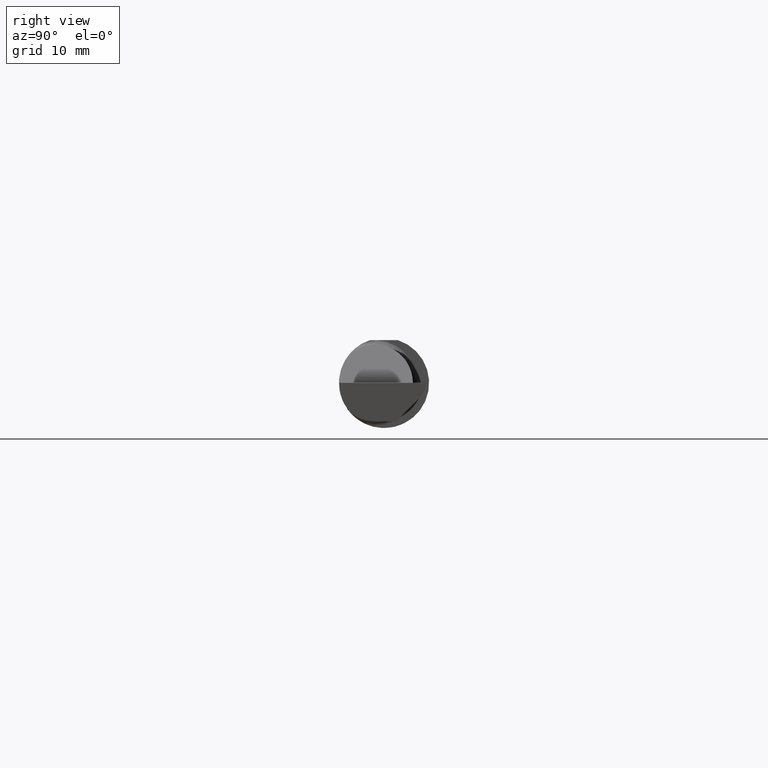
[diagram: clean part render]
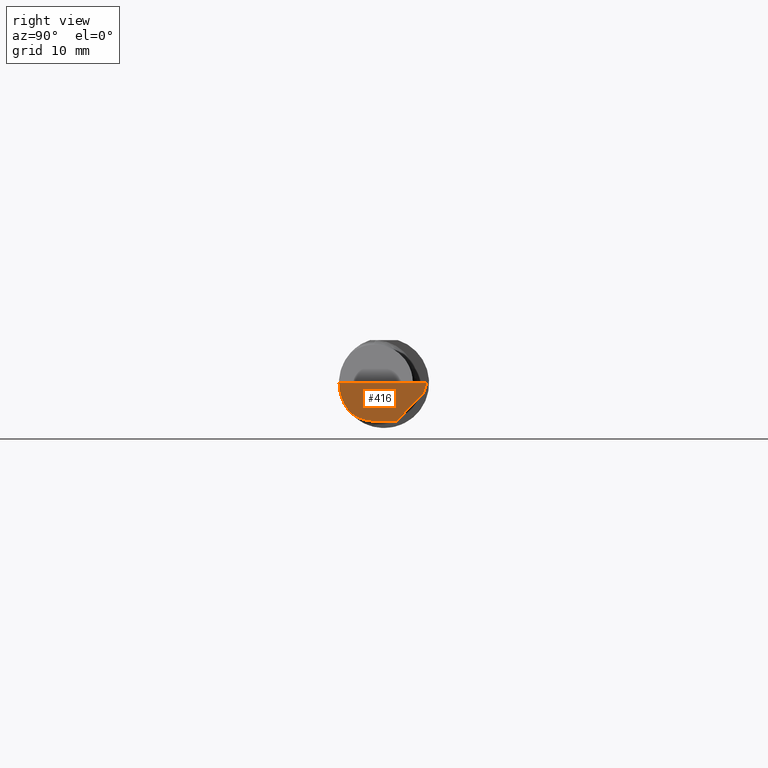
[diagram: same view with one face highlighted and labeled with its STEP entity id]
A machine part, right view. The second image highlights one B-rep face of the part: STEP entity #416.
In plain terms, the highlighted planar face has unit normal (-0.9922, 0.026, 0.1219).
Its self-contained STEP definition (entity closure, byte-faithful):
#8 = DIRECTION ( 'NONE',  ( -0.02617694830786734816, -0.9996573249755573709, 1.707029659308873502E-16 ) ) ;
#18 = CARTESIAN_POINT ( 'NONE',  ( 3.991023571893939081, 0.2162715254282655264, -0.06841772571928600444 ) ) ;
#23 = DIRECTION ( 'NONE',  ( -0.1240019227989248435, -0.3022330132596637853, -0.9451342385281328307 ) ) ;
#46 = VECTOR ( 'NONE', #278, 39.37007874015748854 ) ;
#61 = CARTESIAN_POINT ( 'NONE',  ( 3.969369008890590411, 0.06819262280682612809, -0.2131499999999999506 ) ) ;
#78 = ORIENTED_EDGE ( 'NONE', *, *, #164, .F. ) ;
#84 = EDGE_CURVE ( 'NONE', #444, #203, #670, .T. ) ;
#119 =( BOUNDED_CURVE ( )  B_SPLINE_CURVE ( 3, ( #275, #210, #724, #767 ),
 .UNSPECIFIED., .F., .F. ) 
 B_SPLINE_CURVE_WITH_KNOTS ( ( 4, 4 ),
 ( 0.6344818218798813358, 1.360746882514760836 ),
 .UNSPECIFIED. ) 
 CURVE ( )  GEOMETRIC_REPRESENTATION_ITEM ( )  RATIONAL_B_SPLINE_CURVE ( ( 1.000000000000000000, 0.9565258159410998662, 0.9565258159410998662, 1.000000000000000000 ) ) 
 REPRESENTATION_ITEM ( '' )  );
#126 = VECTOR ( 'NONE', #23, 39.37007874015748854 ) ;
#127 = AXIS2_PLACEMENT_3D ( 'NONE', #530, #384, #339 ) ;
#143 = ORIENTED_EDGE ( 'NONE', *, *, #753, .F. ) ;
#147 = CARTESIAN_POINT ( 'NONE',  ( 3.983714411583731518, 0.1632262006094472029, -0.1166167083458063830 ) ) ;
#164 = EDGE_CURVE ( 'NONE', #485, #229, #119, .T. ) ;
#185 = CARTESIAN_POINT ( 'NONE',  ( 3.965703997523709390, -0.1485302233682062878, -0.1967848538638754252 ) ) ;
#200 = VECTOR ( 'NONE', #8, 39.37007874015748143 ) ;
#203 = VERTEX_POINT ( 'NONE', #61 ) ;
#210 = CARTESIAN_POINT ( 'NONE',  ( 3.973097331270538213, -0.2278791102234775934, -0.1196748990301323284 ) ) ;
#220 = CARTESIAN_POINT ( 'NONE',  ( 3.987226101480002782, -0.2496655036952227236, -1.346597502108382119E-16 ) ) ;
#229 = VERTEX_POINT ( 'NONE', #348 ) ;
#239 = CARTESIAN_POINT ( 'NONE',  ( 3.964907988924521121, -0.1021668565906571902, -0.2131499999999998951 ) ) ;
#266 = FACE_OUTER_BOUND ( 'NONE', #379, .T. ) ;
#274 = CARTESIAN_POINT ( 'NONE',  ( 3.992127980275558041, 0.2189633278254521642, -0.05999999999999999778 ) ) ;
#275 = CARTESIAN_POINT ( 'NONE',  ( 3.968492717492760669, -0.1868028301886797693, -0.1659208399614083285 ) ) ;
#278 = DIRECTION ( 'NONE',  ( -0.1053106618241713144, -0.6976485211320172519, -0.7086580314005226366 ) ) ;
#318 = VERTEX_POINT ( 'NONE', #648 ) ;
#319 = CARTESIAN_POINT ( 'NONE',  ( 3.968492717492760669, -0.1868028301886797693, -0.1659208399614083285 ) ) ;
#339 = DIRECTION ( 'NONE',  ( 0.1219104985252742746, 0.0000000000000000000, 0.9925410975618687015 ) ) ;
#348 = CARTESIAN_POINT ( 'NONE',  ( 3.987221270274236229, -0.2498499999999999888, -1.346590301211604612E-16 ) ) ;
#359 = LINE ( 'NONE', #748, #200 ) ;
#373 = VECTOR ( 'NONE', #507, 39.37007874015748854 ) ;
#379 = EDGE_LOOP ( 'NONE', ( #556, #409, #552, #454, #143, #78 ) ) ;
#384 = DIRECTION ( 'NONE',  ( -0.9922060308645490601, 0.02598182930468759949, 0.1218693434051388996 ) ) ;
#409 = ORIENTED_EDGE ( 'NONE', *, *, #491, .F. ) ;
#416 = ADVANCED_FACE ( 'NONE', ( #266 ), #448, .F. ) ;
#428 = VERTEX_POINT ( 'NONE', #471 ) ;
#444 = VERTEX_POINT ( 'NONE', #274 ) ;
#448 = PLANE ( 'NONE',  #127 ) ;
#454 = ORIENTED_EDGE ( 'NONE', *, *, #608, .F. ) ;
#458 = LINE ( 'NONE', #18, #126 ) ;
#471 = CARTESIAN_POINT ( 'NONE',  ( 4.000000000000013323, 0.2381500000000410511, 1.295322800245870883E-13 ) ) ;
#485 = VERTEX_POINT ( 'NONE', #319 ) ;
#491 = EDGE_CURVE ( 'NONE', #203, #318, #359, .T. ) ;
#507 = DIRECTION ( 'NONE',  ( 0.02617694830786737245, 0.9996573249755573709, -3.901665791507032770E-18 ) ) ;
#526 = LINE ( 'NONE', #220, #373 ) ;
#530 = CARTESIAN_POINT ( 'NONE',  ( 3.963949576795523289, -0.1303119248116720585, -0.2149526021148594757 ) ) ;
#552 = ORIENTED_EDGE ( 'NONE', *, *, #84, .F. ) ;
#556 = ORIENTED_EDGE ( 'NONE', *, *, #595, .T. ) ;
#580 = CARTESIAN_POINT ( 'NONE',  ( 3.968492717492760669, -0.1868028301886797693, -0.1659208399614083285 ) ) ;
#595 = EDGE_CURVE ( 'NONE', #485, #318, #704, .T. ) ;
#608 = EDGE_CURVE ( 'NONE', #428, #444, #458, .T. ) ;
#648 = CARTESIAN_POINT ( 'NONE',  ( 3.966195468375007582, -0.05299999999999998462, -0.2131499999999999229 ) ) ;
#653 = CARTESIAN_POINT ( 'NONE',  ( 3.966195468375007582, -0.05299999999999998462, -0.2131499999999999229 ) ) ;
#670 = LINE ( 'NONE', #147, #46 ) ;
#704 =( BOUNDED_CURVE ( )  B_SPLINE_CURVE ( 3, ( #580, #185, #239, #653 ),
 .UNSPECIFIED., .F., .T. ) 
 B_SPLINE_CURVE_WITH_KNOTS ( ( 4, 4 ),
 ( 5.814587959757480107, 6.493234751459721288 ),
 .UNSPECIFIED. ) 
 CURVE ( )  GEOMETRIC_REPRESENTATION_ITEM ( )  RATIONAL_B_SPLINE_CURVE ( ( 1.000000000000000000, 0.9619867256453021875, 0.9619867256453021875, 1.000000000000000000 ) ) 
 REPRESENTATION_ITEM ( '' )  );
#724 = CARTESIAN_POINT ( 'NONE',  ( 3.979623920331823328, -0.2498499999999999610, -0.06185424669427484756 ) ) ;
#748 = CARTESIAN_POINT ( 'NONE',  ( 3.966218632342872752, -0.05211540375603079117, -0.2131499999999999229 ) ) ;
#753 = EDGE_CURVE ( 'NONE', #229, #428, #526, .T. ) ;
#767 = CARTESIAN_POINT ( 'NONE',  ( 3.987221270274236229, -0.2498499999999999888, -1.346590301211604612E-16 ) ) ;